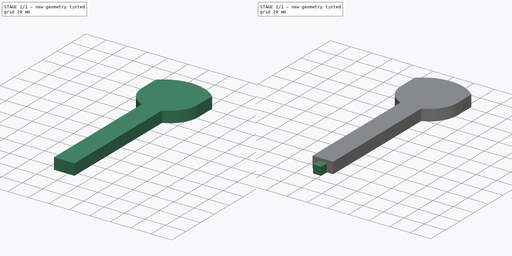
[diagram: build sequence overview — one tinted view per stage of 2, left to right]
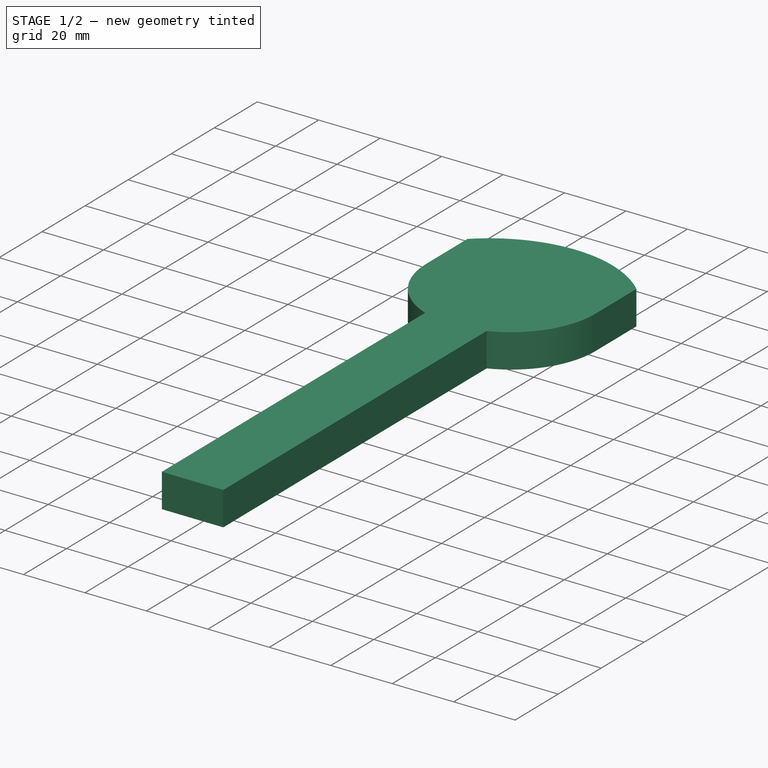
[diagram: stage 1 of 2 — iso view after this stage's code; geometry added in this stage tinted green]
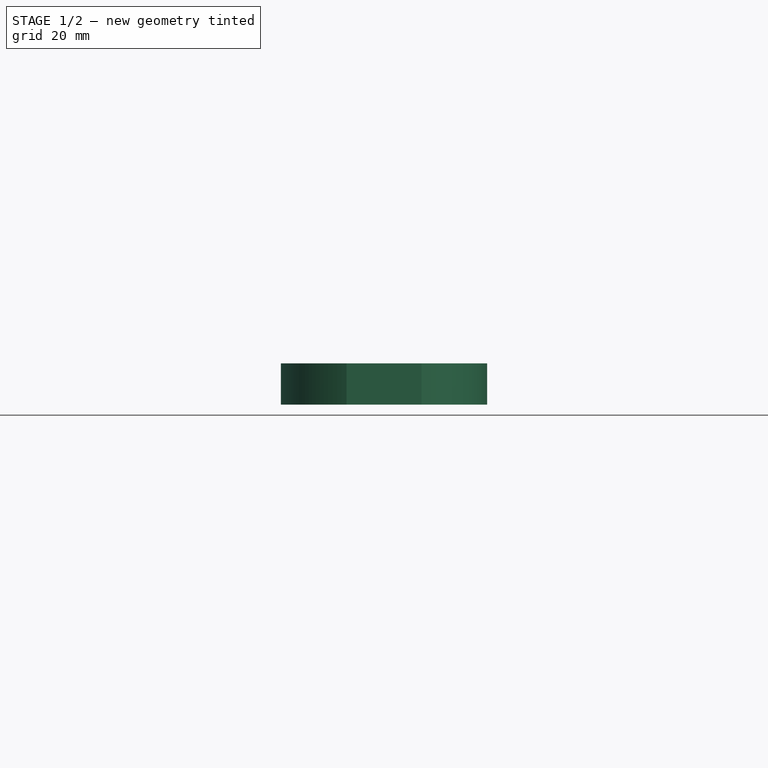
[diagram: stage 1 of 2 — front view after this stage's code; geometry added in this stage tinted green]
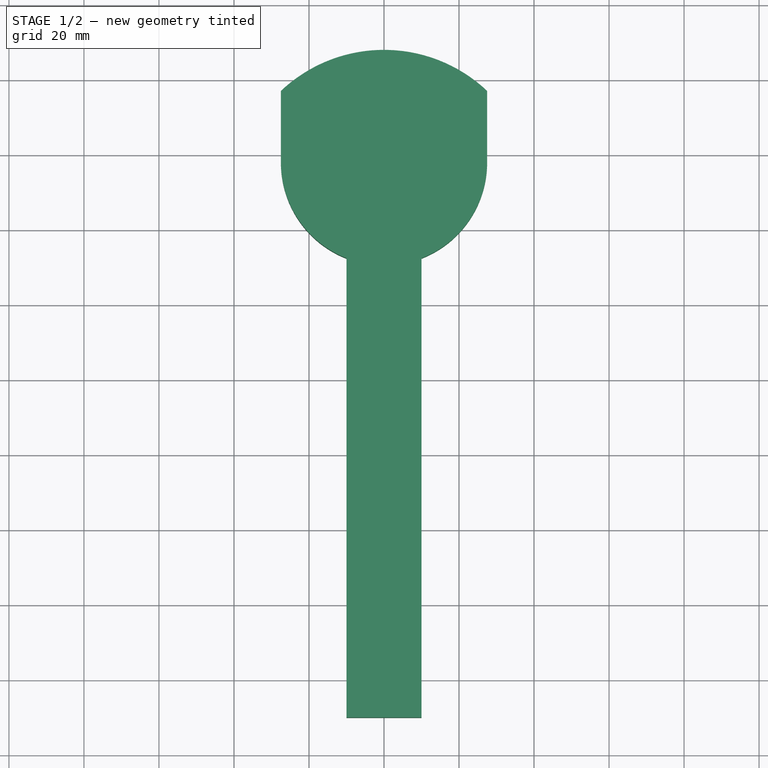
[diagram: stage 1 of 2 — top view after this stage's code; geometry added in this stage tinted green]
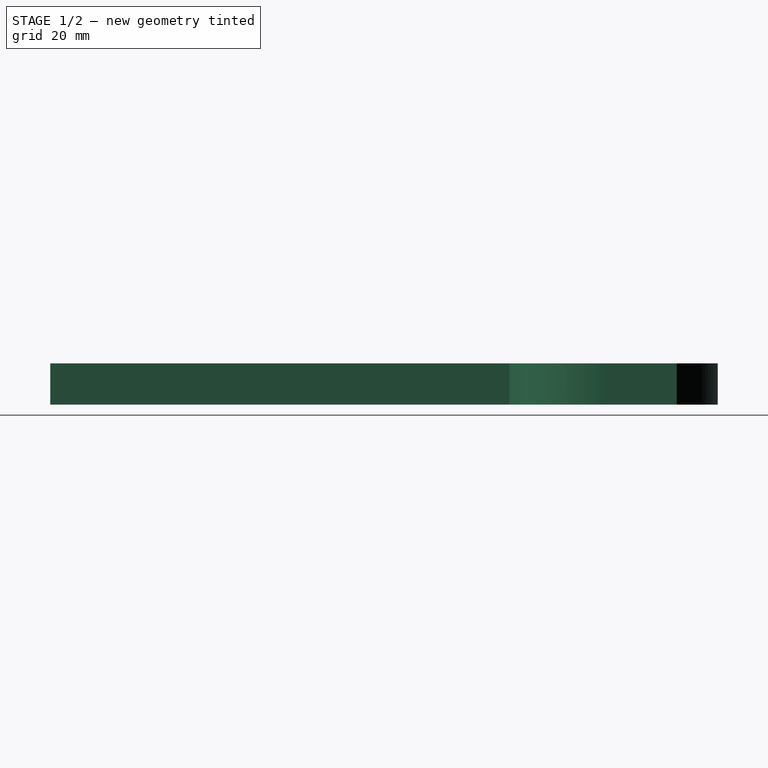
[diagram: stage 1 of 2 — right view after this stage's code; geometry added in this stage tinted green]
FCSTD DOCUMENT  (FreeCAD 0.19R)
Label: 26erTopTire
License: All rights reserved
LicenseURL: http://en.wikipedia.org/wiki/All_rights_reserved
objects: Sketcher::SketchObject×3, PartDesign::Pad×3, PartDesign::Body×1
note: 10 computed .brp shape members not serialized (recipe doc carries the construction recipe); baked Part::Feature solids carry a one-line shape summary decoded from their .brp

FEATURE [Sketcher::SketchObject] Sketch
  FullyConstrained = true
  MapMode = 5
  Support = -> [XY_Plane]
  sketch-geometry (4):
    g0: LineSegment StartX=10 StartY=150 StartZ=0 EndX=10 EndY=278 EndZ=0
    g1: LineSegment StartX=10 StartY=278 StartZ=0 EndX=-10 EndY=278 EndZ=0
    g2: LineSegment StartX=-10 StartY=278 StartZ=0 EndX=-10 EndY=150 EndZ=0
    g3: LineSegment StartX=-10 StartY=150 StartZ=0 EndX=10 EndY=150 EndZ=0
  constraints (10):
    c: Vertical(g0)
    c: Coincident(g0,g1)
    c: Coincident(g1,g2)
    c: Symmetric(g0,g1,g-2)
    c: Symmetric(g0,g2,g-2)
    c: Distance(g1) = 20
    c: DistanceY(g0) = 278
    c: Coincident(g3,g2)
    c: Coincident(g3,g0)
    c: DistanceY(g0) = 150
FEATURE [PartDesign::Pad] Pad
  Direction = (1,1,1)
  Length = 11
  Length2 = 100
  Profile = -> Sketch
  Type = 0
FEATURE [Sketcher::SketchObject] Sketch001
  FullyConstrained = true
  MapMode = 5
  Placement = pos=(0,0,11) rot=(0,0,1;0rad)
  Support = -> [Pad]
  sketch-geometry (5):
    g0: LineSegment StartX=-25 StartY=328 StartZ=0 EndX=25 EndY=328 EndZ=0
    g1: ArcOfCircle CenterX=9e-15 CenterY=288 CenterZ=0 NormalX=0 NormalY=0 NormalZ=1 AngleXU=0 Radius=40 StartAngle=0.812756 EndAngle=2.32884
    g2: LineSegment StartX=-27.5 StartY=317.047 StartZ=0 EndX=-27.5 EndY=298.047 EndZ=0
    g3: LineSegment StartX=27.5 StartY=317.047 StartZ=0 EndX=27.5 EndY=298.047 EndZ=0
    g4: ArcOfCircle CenterX=1.4e-15 CenterY=298.047 CenterZ=0 NormalX=0 NormalY=0 NormalZ=1 AngleXU=0 Radius=27.5 StartAngle=3.14159 EndAngle=6.28318
  constraints (16):
    c: Symmetric(g0,g0,g-2)
    c: Distance(g0) = 50
    c: DistanceY(g0) = 328
    c: Radius(g1) = 40
    c: Symmetric(g1,g1,g-2)
    c: Tangent(g1,g0)
    c: Distance(g1,g1) = 55
    c: Coincident(g2,g1)
    c: Vertical(g2)
    c: Coincident(g3,g1)
    c: Vertical(g3)
    c: Radius(g4) = 27.5
    c: Coincident(g4,g3)
    c: Coincident(g4,g2)
    c: Distance(g3) = 19
    c: Distance(g2) = 19
FEATURE [PartDesign::Pad] Pad001
  BaseFeature = -> Pad
  Direction = (1,1,1)
  Length = 11
  Length2 = 100
  Profile = -> Sketch001
  Reversed = true
  Type = 0
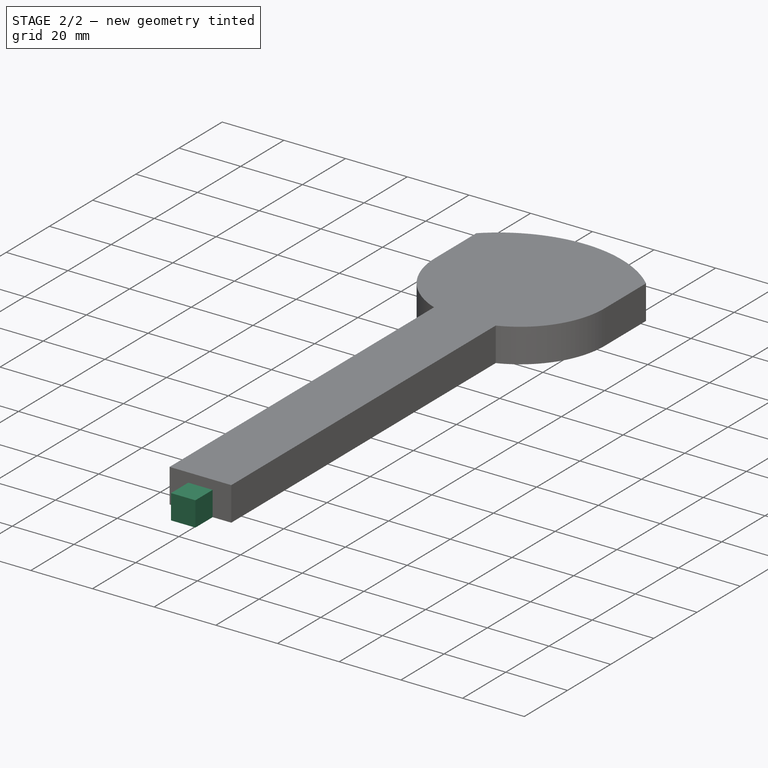
[diagram: stage 2 of 2 — iso view after this stage's code; geometry added in this stage tinted green]
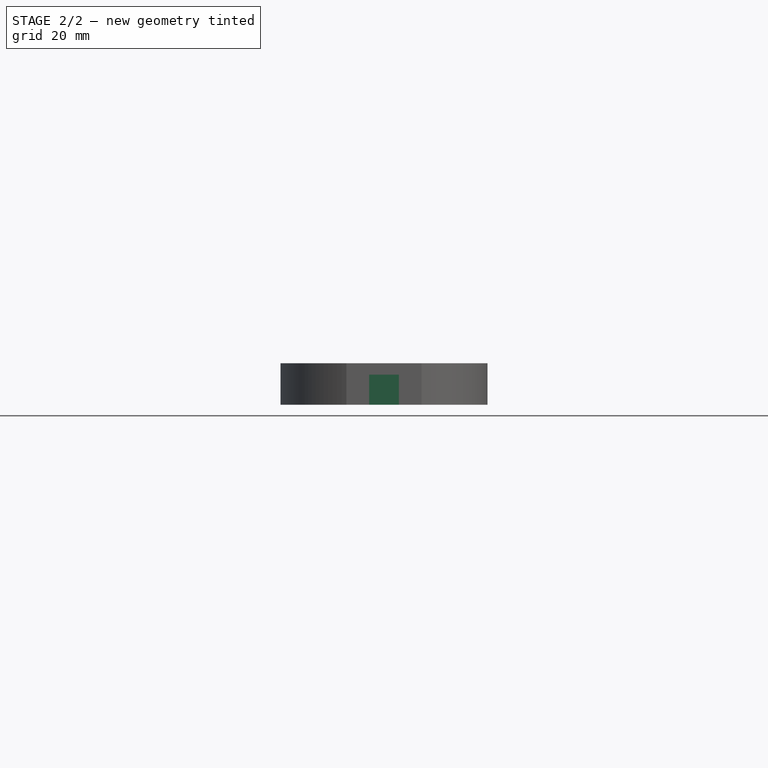
[diagram: stage 2 of 2 — front view after this stage's code; geometry added in this stage tinted green]
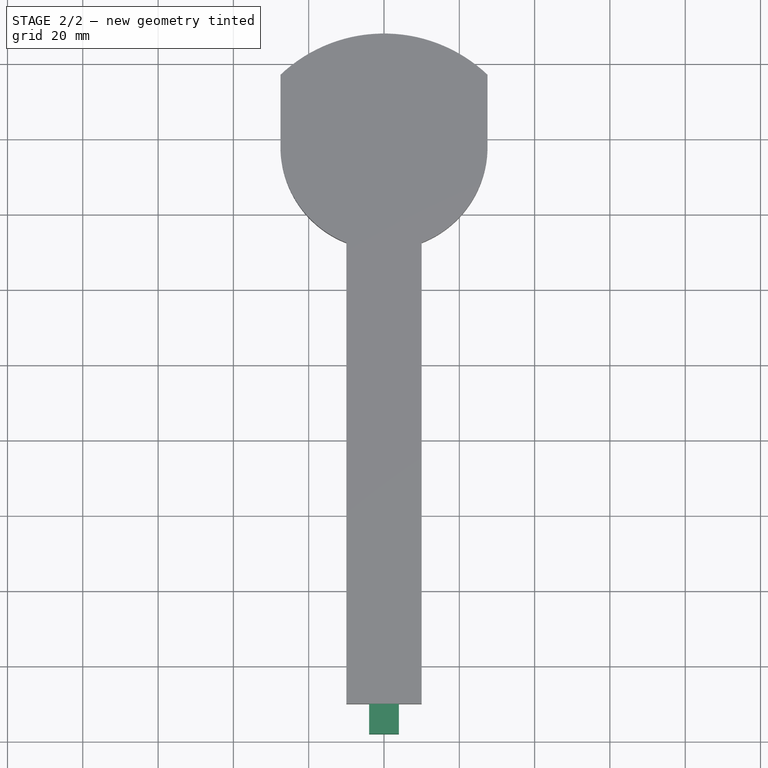
[diagram: stage 2 of 2 — top view after this stage's code; geometry added in this stage tinted green]
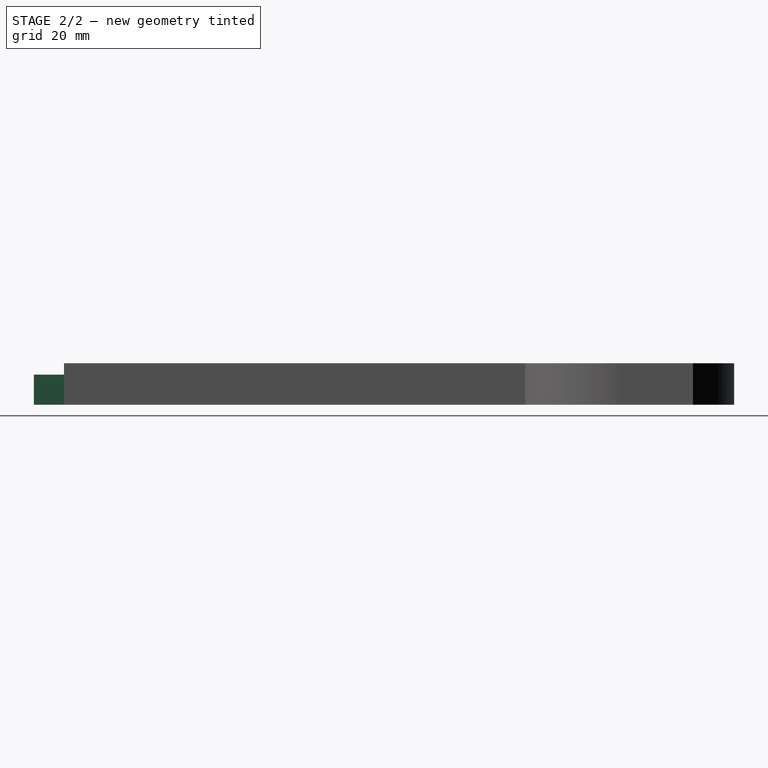
[diagram: stage 2 of 2 — right view after this stage's code; geometry added in this stage tinted green]
FEATURE [Sketcher::SketchObject] Sketch002
  FullyConstrained = true
  MapMode = 5
  Placement = pos=(0,150,0) rot=(1,0,0;1.5708rad)
  Support = -> [Pad001]
  sketch-geometry (4):
    g0: LineSegment StartX=-3.95 StartY=8 StartZ=0 EndX=3.95 EndY=8 EndZ=0
    g1: LineSegment StartX=3.95 StartY=8 StartZ=0 EndX=3.95 EndY=0 EndZ=0
    g2: LineSegment StartX=3.95 StartY=0 StartZ=0 EndX=-3.95 EndY=0 EndZ=0
    g3: LineSegment StartX=-3.95 StartY=0 StartZ=0 EndX=-3.95 EndY=8 EndZ=0
  constraints (11):
    c: Coincident(g0,g1)
    c: Coincident(g1,g2)
    c: Coincident(g2,g3)
    c: Coincident(g3,g0)
    c: Horizontal(g0)
    c: Horizontal(g2)
    c: Vertical(g1)
    c: Vertical(g3)
    c: Distance(g0) = 7.9
    c: Distance(g1) = 8
    c: Symmetric(g1,g2,g-1)
FEATURE [PartDesign::Pad] Pad002
  BaseFeature = -> Pad001
  Direction = (1,1,1)
  Length = 8
  Length2 = 100
  Profile = -> Sketch002
  Type = 0
FEATURE [PartDesign::Body] Body
  Group = -> [Sketch,Pad,Sketch001,Pad001,Sketch002,Pad002]
  Origin = -> Origin
  Tip = -> Pad002
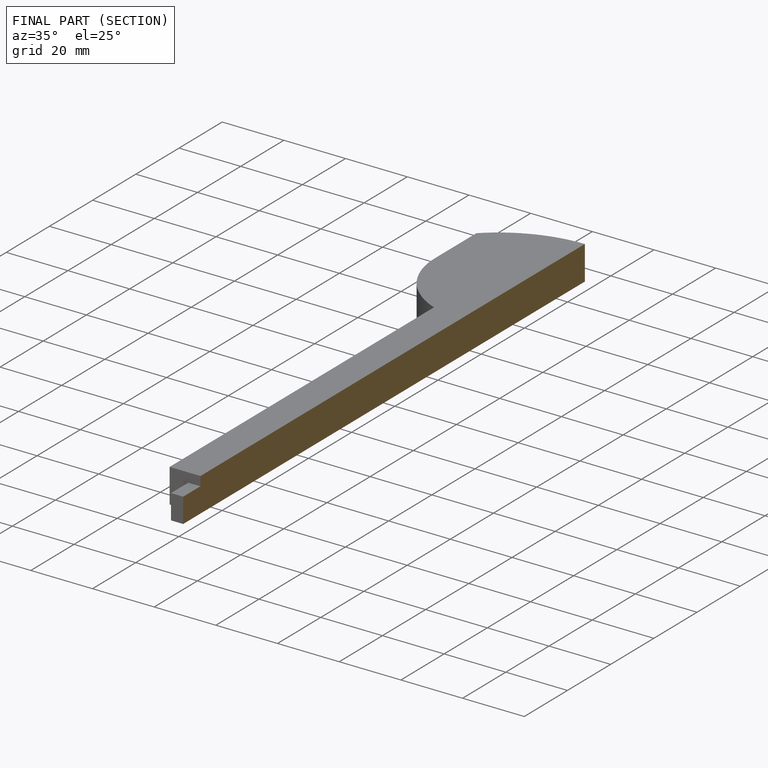
[diagram: finished part — half-section view (interior)]
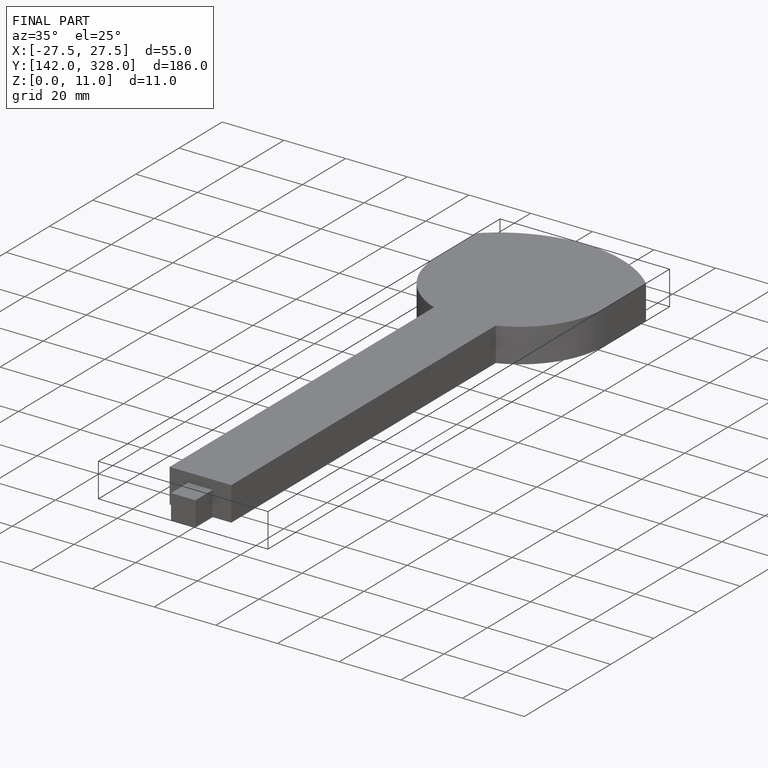
[diagram: finished part — iso view with bounding-box wireframe]
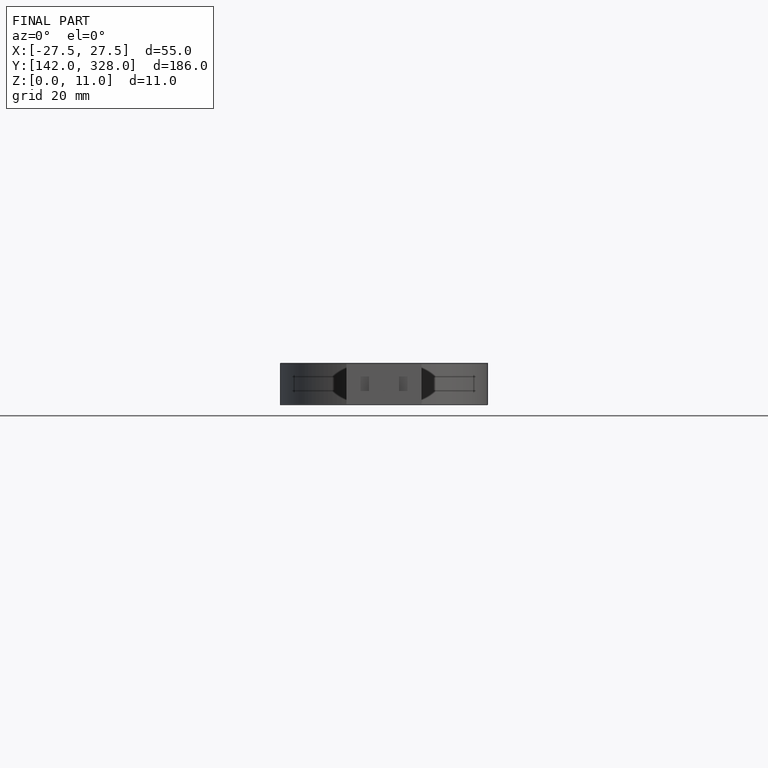
[diagram: finished part — front view with bounding-box wireframe]
